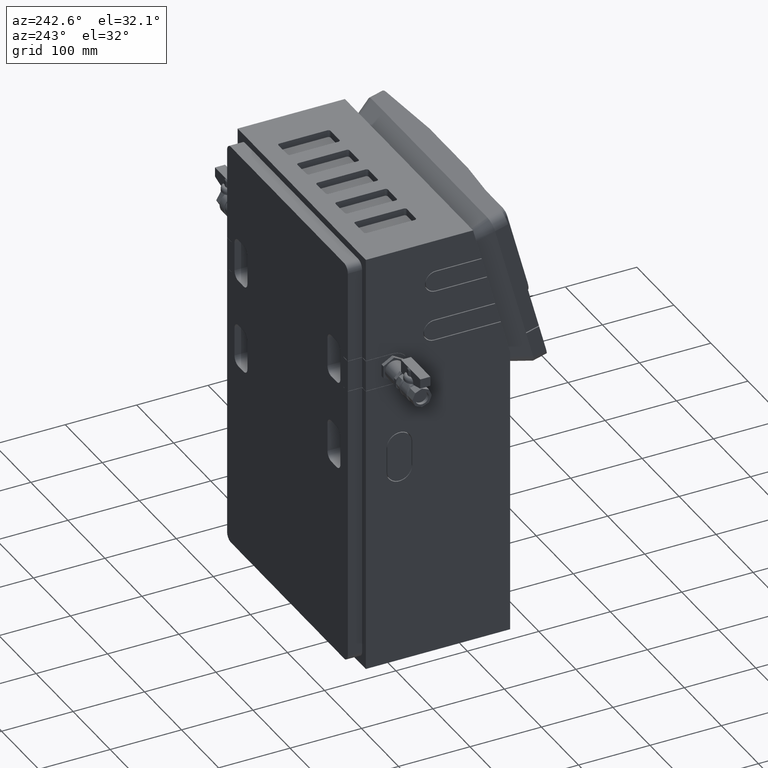
[diagram: clean part render]
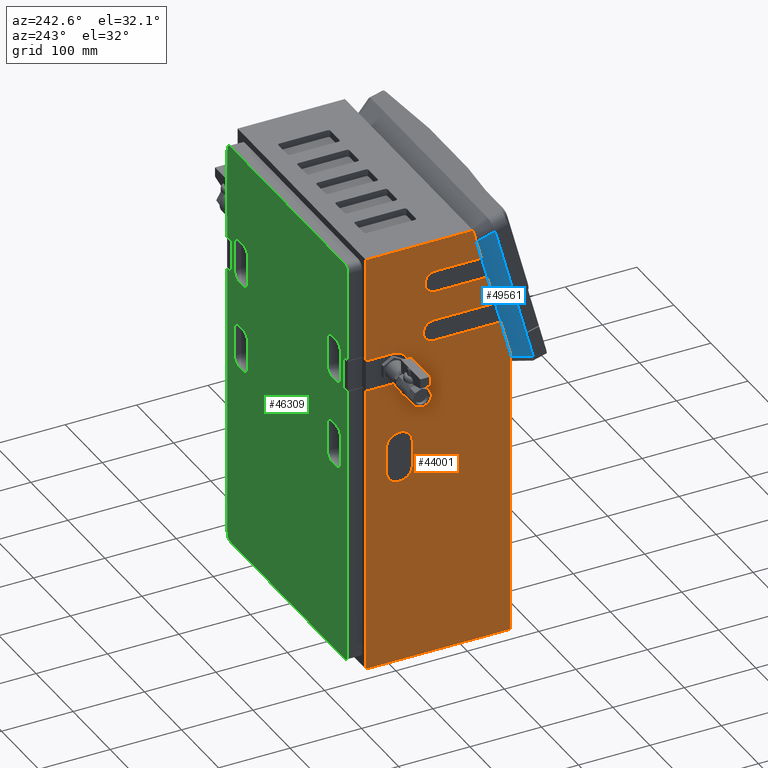
[diagram: same view with three faces highlighted in distinct colors, each labeled with its STEP entity id]
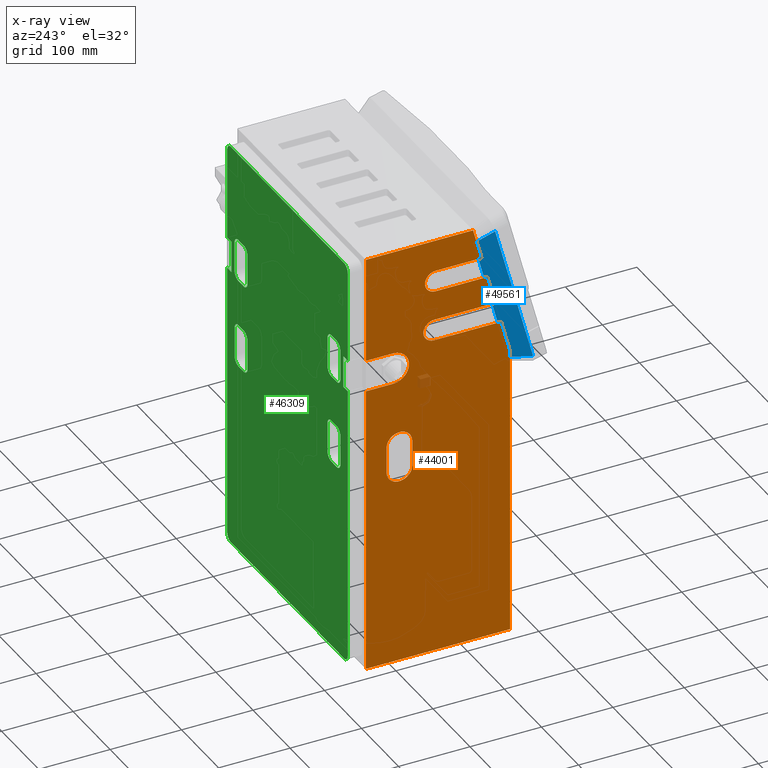
[diagram: x-ray of the same camera — body ghosted, the three highlighted faces saturated]
A machine part, auxiliary view with three faces highlighted in distinct colors.
The next image is the same camera in x-ray (body ghosted, the three faces saturated) — at least one of them is partly hidden behind the body in this view.
Their STEP definitions:

[orange] entity #44001 — the highlighted face is a freeform B-spline surface patch.
#43632=CARTESIAN_POINT('',(-172.99999995250027,-209.0311775424592,-135.4799999997461));
#43633=VERTEX_POINT('',#43632);
#43648=CARTESIAN_POINT('',(-172.99999995250027,-115.50000000026517,-135.4799999997461));
#43649=VERTEX_POINT('',#43648);
#43656=CARTESIAN_POINT('',(-173.0,-209.0311775424592,-135.47999999974604));
#43657=DIRECTION('',(0.0,1.0,0.0));
#43658=VECTOR('',#43657,93.53117754219403);
#43659=LINE('',#43656,#43658);
#43660=EDGE_CURVE('',#43633,#43649,#43659,.T.);
#43680=CARTESIAN_POINT('',(-172.99999995250027,-115.50000000026517,-105.4799999997461));
#43681=VERTEX_POINT('',#43680);
#43688=CARTESIAN_POINT('',(-173.0,-115.50000000026529,-120.4799999997461));
#43689=DIRECTION('',(1.0,0.0,0.0));
#43690=DIRECTION('',(0.0,-1.0,0.0));
#43691=AXIS2_PLACEMENT_3D('',#43688,#43689,#43690);
#43692=CIRCLE('',#43691,15.0);
#43693=EDGE_CURVE('',#43649,#43681,#43692,.T.);
#43727=CARTESIAN_POINT('',(-172.99999995250027,-200.99270176952552,-105.4799999997461));
#43728=VERTEX_POINT('',#43727);
#43735=CARTESIAN_POINT('',(-173.0,-115.50000000026517,-105.47999999974604));
#43736=DIRECTION('',(0.0,-1.0,0.0));
#43737=VECTOR('',#43736,85.49270176926035);
#43738=LINE('',#43735,#43737);
#43739=EDGE_CURVE('',#43681,#43728,#43738,.T.);
#43753=CARTESIAN_POINT('',(-172.99999995250027,-189.92907961404308,-64.189999999740962));
#43754=VERTEX_POINT('',#43753);
#43769=CARTESIAN_POINT('',(-172.99999995250027,-117.70970153820423,-64.189999999740962));
#43770=VERTEX_POINT('',#43769);
#43777=CARTESIAN_POINT('',(-173.0,-189.92907961404308,-64.189999999740962));
#43778=DIRECTION('',(0.0,1.0,0.0));
#43779=VECTOR('',#43778,72.219378075838847);
#43780=LINE('',#43777,#43779);
#43781=EDGE_CURVE('',#43754,#43770,#43780,.T.);
#43801=CARTESIAN_POINT('',(-172.99999995250027,-117.70970153820423,-34.189999999740962));
#43802=VERTEX_POINT('',#43801);
#43809=CARTESIAN_POINT('',(-173.0,-117.70970153820434,-49.189999999740962));
#43810=DIRECTION('',(1.0,0.0,0.0));
#43811=DIRECTION('',(0.0,-1.0,0.0));
#43812=AXIS2_PLACEMENT_3D('',#43809,#43810,#43811);
#43813=CIRCLE('',#43812,15.0);
#43814=EDGE_CURVE('',#43770,#43802,#43813,.T.);
#43848=CARTESIAN_POINT('',(-172.99999995250027,-181.8906038411094,-34.189999999740962));
#43849=VERTEX_POINT('',#43848);
#43856=CARTESIAN_POINT('',(-173.0,-117.70970153820423,-34.189999999740962));
#43857=DIRECTION('',(0.0,-1.0,0.0));
#43858=VECTOR('',#43857,64.180902302905167);
#43859=LINE('',#43856,#43858);
#43860=EDGE_CURVE('',#43802,#43849,#43859,.T.);
#43867=CARTESIAN_POINT('',(-173.0,-222.00000000000006,10.0));
#43868=CARTESIAN_POINT('',(-173.0,-222.00000000000006,-590.0));
#43869=CARTESIAN_POINT('',(-173.0,-20.0,10.0));
#43870=CARTESIAN_POINT('',(-173.0,-20.0,-590.0));
#43871=B_SPLINE_SURFACE_WITH_KNOTS('',1,1,((#43867,#43869),(#43868,#43870)),.UNSPECIFIED.,.F.,.F.,.U.,(2,2),(2,2),(0.0,600.0),(0.0,202.00000000000006),.UNSPECIFIED.);
#43872=ORIENTED_EDGE('',*,*,#43660,.T.);
#43873=ORIENTED_EDGE('',*,*,#43693,.T.);
#43874=ORIENTED_EDGE('',*,*,#43739,.T.);
#43875=CARTESIAN_POINT('',(-173.0,-200.99270176952552,-105.4799999997461));
#43876=DIRECTION('',(0.0,0.258819045102521,0.965925826289068));
#43877=VECTOR('',#43876,42.746553489137654);
#43878=LINE('',#43875,#43877);
#43879=EDGE_CURVE('',#43728,#43754,#43878,.T.);
#43880=ORIENTED_EDGE('',*,*,#43879,.T.);
#43881=ORIENTED_EDGE('',*,*,#43781,.T.);
#43882=ORIENTED_EDGE('',*,*,#43814,.T.);
#43883=ORIENTED_EDGE('',*,*,#43860,.T.);
#43884=CARTESIAN_POINT('',(-173.0,-170.04992902764747,10.0));
#43885=VERTEX_POINT('',#43884);
#43886=CARTESIAN_POINT('',(-173.0,-181.8906038411094,-34.189999999740962));
#43887=DIRECTION('',(0.0,0.258819045102521,0.965925826289068));
#43888=VECTOR('',#43887,45.748854412053426);
#43889=LINE('',#43886,#43888);
#43890=EDGE_CURVE('',#43849,#43885,#43889,.T.);
#43891=ORIENTED_EDGE('',*,*,#43890,.T.);
#43892=CARTESIAN_POINT('',(-173.0,-20.0,10.0));
#43893=VERTEX_POINT('',#43892);
#43894=CARTESIAN_POINT('',(-173.0,-170.04992902764747,10.0));
#43895=DIRECTION('',(0.0,1.0,0.0));
#43896=VECTOR('',#43895,150.04992902764747);
#43897=LINE('',#43894,#43896);
#43898=EDGE_CURVE('',#43885,#43893,#43897,.T.);
#43899=ORIENTED_EDGE('',*,*,#43898,.T.);
#43900=CARTESIAN_POINT('',(-172.99999995250027,-20.0,-138.22999997087527));
#43901=VERTEX_POINT('',#43900);
#43902=CARTESIAN_POINT('',(-173.0,-20.0,10.0));
#43903=DIRECTION('',(0.0,0.0,-1.0));
#43904=VECTOR('',#43903,148.22999997087527);
#43905=LINE('',#43902,#43904);
#43906=EDGE_CURVE('',#43893,#43901,#43905,.T.);
#43907=ORIENTED_EDGE('',*,*,#43906,.T.);
#43908=CARTESIAN_POINT('',(-172.99999995250027,-58.19697643615558,-138.22999997087527));
#43909=VERTEX_POINT('',#43908);
#43910=CARTESIAN_POINT('',(-173.0,-20.0,-138.22999997087527));
#43911=DIRECTION('',(0.0,-1.0,0.0));
#43912=VECTOR('',#43911,38.19697643615558);
#43913=LINE('',#43910,#43912);
#43914=EDGE_CURVE('',#43901,#43909,#43913,.T.);
#43915=ORIENTED_EDGE('',*,*,#43914,.T.);
#43916=CARTESIAN_POINT('',(-172.99999995250027,-58.19697643615558,-182.72999997087527));
#43917=VERTEX_POINT('',#43916);
#43918=CARTESIAN_POINT('',(-173.0,-58.19697643615558,-160.47999997087527));
#43919=DIRECTION('',(1.0,0.0,0.0));
#43920=DIRECTION('',(0.0,1.0,0.0));
#43921=AXIS2_PLACEMENT_3D('',#43918,#43919,#43920);
#43922=CIRCLE('',#43921,22.25);
#43923=EDGE_CURVE('',#43909,#43917,#43922,.T.);
#43924=ORIENTED_EDGE('',*,*,#43923,.T.);
#43925=CARTESIAN_POINT('',(-172.99999995250027,-20.0,-182.72999997087527));
#43926=VERTEX_POINT('',#43925);
#43927=CARTESIAN_POINT('',(-173.0,-58.19697643615558,-182.72999997087527));
#43928=DIRECTION('',(0.0,1.0,0.0));
#43929=VECTOR('',#43928,38.19697643615558);
#43930=LINE('',#43927,#43929);
#43931=EDGE_CURVE('',#43917,#43926,#43930,.T.);
#43932=ORIENTED_EDGE('',*,*,#43931,.T.);
#43933=CARTESIAN_POINT('',(-173.0,-20.0,-590.0));
#43934=VERTEX_POINT('',#43933);
#43935=CARTESIAN_POINT('',(-173.0,-20.0,-182.72999997087527));
#43936=DIRECTION('',(0.0,0.0,-1.0));
#43937=VECTOR('',#43936,407.27000002912473);
#43938=LINE('',#43935,#43937);
#43939=EDGE_CURVE('',#43926,#43934,#43938,.T.);
#43940=ORIENTED_EDGE('',*,*,#43939,.T.);
#43941=CARTESIAN_POINT('',(-173.00000000000045,-222.00000000000006,-590.0));
#43942=VERTEX_POINT('',#43941);
#43943=CARTESIAN_POINT('',(-173.0,-20.0,-590.0));
#43944=DIRECTION('',(0.0,-1.0,0.0));
#43945=VECTOR('',#43944,202.00000000000006);
#43946=LINE('',#43943,#43945);
#43947=EDGE_CURVE('',#43934,#43942,#43946,.T.);
#43948=ORIENTED_EDGE('',*,*,#43947,.T.);
#43949=CARTESIAN_POINT('',(-173.00000000000045,-222.00000000000006,-183.88030432562891));
#43950=VERTEX_POINT('',#43949);
#43951=CARTESIAN_POINT('',(-173.00000000000045,-222.00000000000006,-590.0));
#43952=DIRECTION('',(0.0,0.0,1.0));
#43953=VECTOR('',#43952,406.11969567437109);
#43954=LINE('',#43951,#43953);
#43955=EDGE_CURVE('',#43942,#43950,#43954,.T.);
#43956=ORIENTED_EDGE('',*,*,#43955,.T.);
#43957=CARTESIAN_POINT('',(-173.0,-222.00000000000006,-183.88030432562891));
#43958=DIRECTION('',(0.0,0.25881904510252,0.965925826289068));
#43959=VECTOR('',#43958,50.107682193185575);
#43960=LINE('',#43957,#43959);
#43961=EDGE_CURVE('',#43950,#43633,#43960,.T.);
#43962=ORIENTED_EDGE('',*,*,#43961,.T.);
#43963=EDGE_LOOP('',(#43872,#43873,#43874,#43880,#43881,#43882,#43883,#43891,#43899,#43907,#43915,#43924,#43932,#43940,#43948,#43956,#43962));
#43964=FACE_OUTER_BOUND('',#43963,.T.);
#43965=CARTESIAN_POINT('',(-172.99999995250027,-49.000000000093621,-274.1899999998555));
#43966=VERTEX_POINT('',#43965);
#43967=CARTESIAN_POINT('',(-172.99999995250027,-85.000000000093621,-274.1899999998555));
#43968=VERTEX_POINT('',#43967);
#43969=CARTESIAN_POINT('',(-173.0,-67.000000000093621,-274.1899999998555));
#43970=DIRECTION('',(1.0,0.0,0.0));
#43971=DIRECTION('',(0.0,1.0,0.0));
#43972=AXIS2_PLACEMENT_3D('',#43969,#43970,#43971);
#43973=CIRCLE('',#43972,18.0);
#43974=EDGE_CURVE('',#43966,#43968,#43973,.T.);
#43975=ORIENTED_EDGE('',*,*,#43974,.T.);
#43976=CARTESIAN_POINT('',(-172.99999995250027,-85.000000000093621,-310.1899999998555));
#43977=VERTEX_POINT('',#43976);
#43978=CARTESIAN_POINT('',(-173.0,-85.000000000093621,-274.1899999998555));
#43979=DIRECTION('',(0.0,0.0,-1.0));
#43980=VECTOR('',#43979,36.0);
#43981=LINE('',#43978,#43980);
#43982=EDGE_CURVE('',#43968,#43977,#43981,.T.);
#43983=ORIENTED_EDGE('',*,*,#43982,.T.);
#43984=CARTESIAN_POINT('',(-172.99999995250027,-49.000000000093621,-310.1899999998555));
#43985=VERTEX_POINT('',#43984);
#43986=CARTESIAN_POINT('',(-173.0,-67.000000000093621,-310.1899999998555));
#43987=DIRECTION('',(1.0,0.0,0.0));
#43988=DIRECTION('',(0.0,1.0,0.0));
#43989=AXIS2_PLACEMENT_3D('',#43986,#43987,#43988);
#43990=CIRCLE('',#43989,18.0);
#43991=EDGE_CURVE('',#43977,#43985,#43990,.T.);
#43992=ORIENTED_EDGE('',*,*,#43991,.T.);
#43993=CARTESIAN_POINT('',(-173.0,-49.000000000093621,-310.1899999998555));
#43994=DIRECTION('',(0.0,0.0,1.0));
#43995=VECTOR('',#43994,36.0);
#43996=LINE('',#43993,#43995);
#43997=EDGE_CURVE('',#43985,#43966,#43996,.T.);
#43998=ORIENTED_EDGE('',*,*,#43997,.T.);
#43999=EDGE_LOOP('',(#43975,#43983,#43992,#43998));
#44000=FACE_BOUND('',#43999,.T.);
#44001=ADVANCED_FACE('',(#43964,#44000),#43871,.F.);

[blue] entity #49561 — the highlighted planar face has unit normal (-0.9425, 0.3228, -0.0865).
#48515=CARTESIAN_POINT('',(-170.29999995249906,-202.36912142741917,-2.239136083154595));
#48516=VERTEX_POINT('',#48515);
#48524=CARTESIAN_POINT('',(-170.29999995249909,-255.42702567343596,-200.25393047241374));
#48525=VERTEX_POINT('',#48524);
#48526=CARTESIAN_POINT('',(-170.29999995249906,-202.36912142741917,-2.239136083154595));
#48527=DIRECTION('',(-1.386425E-016,-0.258819045102519,-0.965925826289069));
#48528=VECTOR('',#48527,205.00000000000017);
#48529=LINE('',#48526,#48528);
#48530=EDGE_CURVE('',#48516,#48525,#48529,.T.);
#49309=CARTESIAN_POINT('',(-160.29999995249926,-225.85854596616161,-198.85929510770336));
#49310=VERTEX_POINT('',#49309);
#49318=CARTESIAN_POINT('',(-160.29999995249906,-177.45938453199039,-18.23116559164734));
#49319=VERTEX_POINT('',#49318);
#49320=CARTESIAN_POINT('',(-160.29999995249906,-177.45938453199039,-18.23116559164734));
#49321=DIRECTION('',(-3.039755E-016,-0.258819045102519,-0.965925826289069));
#49322=VECTOR('',#49321,187.0000000000002);
#49323=LINE('',#49320,#49322);
#49324=EDGE_CURVE('',#49319,#49310,#49323,.T.);
#49534=CARTESIAN_POINT('',(-160.29999995249906,-177.45938453199039,-18.23116559164734));
#49535=DIRECTION('',(-0.320052851490617,-0.797243232326311,0.511829464531518));
#49536=VECTOR('',#49535,31.244839573919869);
#49537=LINE('',#49534,#49536);
#49538=EDGE_CURVE('',#49319,#48516,#49537,.T.);
#49545=CARTESIAN_POINT('',(-160.29999995249906,-177.45938453199039,-18.23116559164734));
#49546=DIRECTION('',(-0.942495681689853,0.322830113514238,-0.086502068208587));
#49547=DIRECTION('',(0.334218326840374,0.91038092011015,-0.243935832348216));
#49548=AXIS2_PLACEMENT_3D('',#49545,#49546,#49547);
#49549=PLANE('',#49548);
#49550=ORIENTED_EDGE('',*,*,#49324,.T.);
#49551=CARTESIAN_POINT('',(-170.29999995249909,-255.42702567343596,-200.25393047241374));
#49552=DIRECTION('',(0.320052851490612,0.946347624455565,0.044635702526527));
#49553=VECTOR('',#49552,31.244839573919922);
#49554=LINE('',#49551,#49553);
#49555=EDGE_CURVE('',#48525,#49310,#49554,.T.);
#49556=ORIENTED_EDGE('',*,*,#49555,.F.);
#49557=ORIENTED_EDGE('',*,*,#48530,.F.);
#49558=ORIENTED_EDGE('',*,*,#49538,.F.);
#49559=EDGE_LOOP('',(#49550,#49556,#49557,#49558));
#49560=FACE_OUTER_BOUND('',#49559,.T.);
#49561=ADVANCED_FACE('',(#49560),#49549,.T.);

[green] entity #46309 — the highlighted face is a freeform B-spline surface patch.
#45614=CARTESIAN_POINT('',(150.99999995250027,0.0,-138.22999997087527));
#45615=VERTEX_POINT('',#45614);
#45616=CARTESIAN_POINT('',(150.99999995250027,0.0,-182.72999997087527));
#45617=VERTEX_POINT('',#45616);
#45618=CARTESIAN_POINT('',(150.99999995250027,0.0,-138.22999997087527));
#45619=DIRECTION('',(0.0,0.0,-1.0));
#45620=VECTOR('',#45619,44.5);
#45621=LINE('',#45618,#45620);
#45622=EDGE_CURVE('',#45615,#45617,#45621,.T.);
#45655=CARTESIAN_POINT('',(163.0,0.0,-182.72999997087527));
#45656=VERTEX_POINT('',#45655);
#45657=CARTESIAN_POINT('',(150.99999995250027,0.0,-182.72999997087527));
#45658=DIRECTION('',(1.0,0.0,0.0));
#45659=VECTOR('',#45658,12.000000047499725);
#45660=LINE('',#45657,#45659);
#45661=EDGE_CURVE('',#45617,#45656,#45660,.T.);
#45748=CARTESIAN_POINT('',(163.0,0.0,-138.22999997087527));
#45749=VERTEX_POINT('',#45748);
#45750=CARTESIAN_POINT('',(163.0,0.0,-138.22999997087527));
#45751=DIRECTION('',(-1.0,0.0,0.0));
#45752=VECTOR('',#45751,12.000000047499725);
#45753=LINE('',#45750,#45752);
#45754=EDGE_CURVE('',#45749,#45615,#45753,.T.);
#45788=CARTESIAN_POINT('',(-150.99999995250027,0.0,-138.22999997087527));
#45789=VERTEX_POINT('',#45788);
#45790=CARTESIAN_POINT('',(-163.0,0.0,-138.22999997087527));
#45791=VERTEX_POINT('',#45790);
#45792=CARTESIAN_POINT('',(-150.99999995250027,0.0,-138.22999997087527));
#45793=DIRECTION('',(-1.0,0.0,0.0));
#45794=VECTOR('',#45793,12.000000047499725);
#45795=LINE('',#45792,#45794);
#45796=EDGE_CURVE('',#45789,#45791,#45795,.T.);
#45860=CARTESIAN_POINT('',(-150.99999995250027,0.0,-182.72999997087527));
#45861=VERTEX_POINT('',#45860);
#45862=CARTESIAN_POINT('',(-150.99999995250027,0.0,-182.72999997087527));
#45863=DIRECTION('',(0.0,0.0,1.0));
#45864=VECTOR('',#45863,44.5);
#45865=LINE('',#45862,#45864);
#45866=EDGE_CURVE('',#45861,#45789,#45865,.T.);
#45884=CARTESIAN_POINT('',(-163.0,0.0,-182.72999997087527));
#45885=VERTEX_POINT('',#45884);
#45886=CARTESIAN_POINT('',(-163.0,0.0,-182.72999997087527));
#45887=DIRECTION('',(1.0,0.0,0.0));
#45888=VECTOR('',#45887,12.000000047499725);
#45889=LINE('',#45886,#45888);
#45890=EDGE_CURVE('',#45885,#45861,#45889,.T.);
#45926=CARTESIAN_POINT('',(163.0,0.0,-570.0));
#45927=VERTEX_POINT('',#45926);
#45934=CARTESIAN_POINT('',(163.0,0.0,-182.72999997087527));
#45935=DIRECTION('',(0.0,0.0,-1.0));
#45936=VECTOR('',#45935,387.27000002912473);
#45937=LINE('',#45934,#45936);
#45938=EDGE_CURVE('',#45656,#45927,#45937,.T.);
#45943=CARTESIAN_POINT('',(163.0,0.0,-580.0));
#45944=CARTESIAN_POINT('',(163.0,0.0,0.0));
#45945=CARTESIAN_POINT('',(-163.0,0.0,-580.0));
#45946=CARTESIAN_POINT('',(-163.0,0.0,0.0));
#45947=B_SPLINE_SURFACE_WITH_KNOTS('',1,1,((#45943,#45945),(#45944,#45946)),.UNSPECIFIED.,.F.,.F.,.U.,(2,2),(2,2),(0.0,580.0),(0.0,326.0),.UNSPECIFIED.);
#45948=ORIENTED_EDGE('',*,*,#45754,.T.);
#45949=ORIENTED_EDGE('',*,*,#45622,.T.);
#45950=ORIENTED_EDGE('',*,*,#45661,.T.);
#45951=ORIENTED_EDGE('',*,*,#45938,.T.);
#45952=CARTESIAN_POINT('',(153.0,0.0,-580.0));
#45953=VERTEX_POINT('',#45952);
#45954=CARTESIAN_POINT('',(153.0,0.0,-570.0));
#45955=DIRECTION('',(0.0,-1.0,0.0));
#45956=DIRECTION('',(0.707106781186547,0.0,-0.707106781186547));
#45957=AXIS2_PLACEMENT_3D('',#45954,#45955,#45956);
#45958=CIRCLE('',#45957,9.999999999999998);
#45959=EDGE_CURVE('',#45953,#45927,#45958,.T.);
#45960=ORIENTED_EDGE('',*,*,#45959,.F.);
#45961=CARTESIAN_POINT('',(-153.0,0.0,-580.0));
#45962=VERTEX_POINT('',#45961);
#45963=CARTESIAN_POINT('',(153.0,0.0,-580.0));
#45964=DIRECTION('',(-1.0,0.0,0.0));
#45965=VECTOR('',#45964,306.0);
#45966=LINE('',#45963,#45965);
#45967=EDGE_CURVE('',#45953,#45962,#45966,.T.);
#45968=ORIENTED_EDGE('',*,*,#45967,.T.);
#45969=CARTESIAN_POINT('',(-163.0,0.0,-570.0));
#45970=VERTEX_POINT('',#45969);
#45971=CARTESIAN_POINT('',(-153.0,0.0,-570.0));
#45972=DIRECTION('',(0.0,-1.0,0.0));
#45973=DIRECTION('',(-0.707106781186547,0.0,-0.707106781186547));
#45974=AXIS2_PLACEMENT_3D('',#45971,#45972,#45973);
#45975=CIRCLE('',#45974,9.999999999999998);
#45976=EDGE_CURVE('',#45970,#45962,#45975,.T.);
#45977=ORIENTED_EDGE('',*,*,#45976,.F.);
#45978=CARTESIAN_POINT('',(-163.0,0.0,-182.72999997087527));
#45979=DIRECTION('',(0.0,0.0,-1.0));
#45980=VECTOR('',#45979,387.27000002912473);
#45981=LINE('',#45978,#45980);
#45982=EDGE_CURVE('',#45885,#45970,#45981,.T.);
#45983=ORIENTED_EDGE('',*,*,#45982,.F.);
#45984=ORIENTED_EDGE('',*,*,#45890,.T.);
#45985=ORIENTED_EDGE('',*,*,#45866,.T.);
#45986=ORIENTED_EDGE('',*,*,#45796,.T.);
#45987=CARTESIAN_POINT('',(-163.0,0.0,-10.0));
#45988=VERTEX_POINT('',#45987);
#45989=CARTESIAN_POINT('',(-163.0,0.0,-10.0));
#45990=DIRECTION('',(0.0,0.0,-1.0));
#45991=VECTOR('',#45990,128.22999997087527);
#45992=LINE('',#45989,#45991);
#45993=EDGE_CURVE('',#45988,#45791,#45992,.T.);
#45994=ORIENTED_EDGE('',*,*,#45993,.F.);
#45995=CARTESIAN_POINT('',(-153.0,0.0,0.0));
#45996=VERTEX_POINT('',#45995);
#45997=CARTESIAN_POINT('',(-153.0,0.0,-10.0));
#45998=DIRECTION('',(0.0,-1.0,0.0));
#45999=DIRECTION('',(-0.707106781186547,0.0,0.707106781186547));
#46000=AXIS2_PLACEMENT_3D('',#45997,#45998,#45999);
#46001=CIRCLE('',#46000,9.999999999999998);
#46002=EDGE_CURVE('',#45996,#45988,#46001,.T.);
#46003=ORIENTED_EDGE('',*,*,#46002,.F.);
#46004=CARTESIAN_POINT('',(153.0,0.0,0.0));
#46005=VERTEX_POINT('',#46004);
#46006=CARTESIAN_POINT('',(-153.0,0.0,0.0));
#46007=DIRECTION('',(1.0,0.0,0.0));
#46008=VECTOR('',#46007,306.0);
#46009=LINE('',#46006,#46008);
#46010=EDGE_CURVE('',#45996,#46005,#46009,.T.);
#46011=ORIENTED_EDGE('',*,*,#46010,.T.);
#46012=CARTESIAN_POINT('',(163.0,0.0,-10.0));
#46013=VERTEX_POINT('',#46012);
#46014=CARTESIAN_POINT('',(153.0,0.0,-10.0));
#46015=DIRECTION('',(0.0,-1.0,0.0));
#46016=DIRECTION('',(0.707106781186547,0.0,0.707106781186547));
#46017=AXIS2_PLACEMENT_3D('',#46014,#46015,#46016);
#46018=CIRCLE('',#46017,9.999999999999998);
#46019=EDGE_CURVE('',#46013,#46005,#46018,.T.);
#46020=ORIENTED_EDGE('',*,*,#46019,.F.);
#46021=CARTESIAN_POINT('',(163.0,0.0,-10.0));
#46022=DIRECTION('',(0.0,0.0,-1.0));
#46023=VECTOR('',#46022,128.22999997087527);
#46024=LINE('',#46021,#46023);
#46025=EDGE_CURVE('',#46013,#45749,#46024,.T.);
#46026=ORIENTED_EDGE('',*,*,#46025,.T.);
#46027=EDGE_LOOP('',(#45948,#45949,#45950,#45951,#45960,#45968,#45977,#45983,#45984,#45985,#45986,#45994,#46003,#46011,#46020,#46026));
#46028=FACE_OUTER_BOUND('',#46027,.T.);
#46029=CARTESIAN_POINT('',(-117.99999995250027,-2.761453E-010,-185.34000000000674));
#46030=VERTEX_POINT('',#46029);
#46031=CARTESIAN_POINT('',(-107.99999995250027,-2.761453E-010,-175.34000000000674));
#46032=VERTEX_POINT('',#46031);
#46033=CARTESIAN_POINT('',(-117.99999995250027,0.0,-175.34000000000674));
#46034=DIRECTION('',(0.0,-1.0,0.0));
#46035=DIRECTION('',(0.707106781186547,0.0,-0.707106781186547));
#46036=AXIS2_PLACEMENT_3D('',#46033,#46034,#46035);
#46037=CIRCLE('',#46036,9.999999999999998);
#46038=EDGE_CURVE('',#46030,#46032,#46037,.T.);
#46039=ORIENTED_EDGE('',*,*,#46038,.T.);
#46040=CARTESIAN_POINT('',(-107.99999995250027,-2.761453E-010,-135.34000000000674));
#46041=VERTEX_POINT('',#46040);
#46042=CARTESIAN_POINT('',(-107.99999995250027,0.0,-175.34000000000674));
#46043=DIRECTION('',(0.0,0.0,1.0));
#46044=VECTOR('',#46043,40.0);
#46045=LINE('',#46042,#46044);
#46046=EDGE_CURVE('',#46032,#46041,#46045,.T.);
#46047=ORIENTED_EDGE('',*,*,#46046,.T.);
#46048=CARTESIAN_POINT('',(-117.99999995250027,-2.761453E-010,-125.34000000000674));
#46049=VERTEX_POINT('',#46048);
#46050=CARTESIAN_POINT('',(-117.99999995250027,0.0,-135.34000000000674));
#46051=DIRECTION('',(0.0,-1.0,0.0));
#46052=DIRECTION('',(0.707106781186547,0.0,0.707106781186547));
#46053=AXIS2_PLACEMENT_3D('',#46050,#46051,#46052);
#46054=CIRCLE('',#46053,9.999999999999998);
#46055=EDGE_CURVE('',#46041,#46049,#46054,.T.);
#46056=ORIENTED_EDGE('',*,*,#46055,.T.);
#46057=CARTESIAN_POINT('',(-132.99999995250027,-2.761453E-010,-125.34000000000674));
#46058=VERTEX_POINT('',#46057);
#46059=CARTESIAN_POINT('',(-117.99999995250027,0.0,-125.34000000000674));
#46060=DIRECTION('',(-1.0,0.0,0.0));
#46061=VECTOR('',#46060,15.0);
#46062=LINE('',#46059,#46061);
#46063=EDGE_CURVE('',#46049,#46058,#46062,.T.);
#46064=ORIENTED_EDGE('',*,*,#46063,.T.);
#46065=CARTESIAN_POINT('',(-142.99999995250027,-2.761453E-010,-135.34000000000674));
#46066=VERTEX_POINT('',#46065);
#46067=CARTESIAN_POINT('',(-132.99999995250027,0.0,-135.34000000000674));
#46068=DIRECTION('',(0.0,-1.0,0.0));
#46069=DIRECTION('',(-0.707106781186547,0.0,0.707106781186547));
#46070=AXIS2_PLACEMENT_3D('',#46067,#46068,#46069);
#46071=CIRCLE('',#46070,9.999999999999998);
#46072=EDGE_CURVE('',#46058,#46066,#46071,.T.);
#46073=ORIENTED_EDGE('',*,*,#46072,.T.);
#46074=CARTESIAN_POINT('',(-142.99999995250027,-2.761453E-010,-175.34000000000674));
#46075=VERTEX_POINT('',#46074);
#46076=CARTESIAN_POINT('',(-142.99999995250027,0.0,-135.34000000000674));
#46077=DIRECTION('',(0.0,0.0,-1.0));
#46078=VECTOR('',#46077,40.0);
#46079=LINE('',#46076,#46078);
#46080=EDGE_CURVE('',#46066,#46075,#46079,.T.);
#46081=ORIENTED_EDGE('',*,*,#46080,.T.);
#46082=CARTESIAN_POINT('',(-132.99999995250027,-2.761453E-010,-185.34000000000674));
#46083=VERTEX_POINT('',#46082);
#46084=CARTESIAN_POINT('',(-132.99999995250027,0.0,-175.34000000000674));
#46085=DIRECTION('',(0.0,-1.0,0.0));
#46086=DIRECTION('',(-0.707106781186547,0.0,-0.707106781186547));
#46087=AXIS2_PLACEMENT_3D('',#46084,#46085,#46086);
#46088=CIRCLE('',#46087,9.999999999999998);
#46089=EDGE_CURVE('',#46075,#46083,#46088,.T.);
#46090=ORIENTED_EDGE('',*,*,#46089,.T.);
#46091=CARTESIAN_POINT('',(-132.99999995250027,0.0,-185.34000000000674));
#46092=DIRECTION('',(1.0,0.0,0.0));
#46093=VECTOR('',#46092,15.0);
#46094=LINE('',#46091,#46093);
#46095=EDGE_CURVE('',#46083,#46030,#46094,.T.);
#46096=ORIENTED_EDGE('',*,*,#46095,.T.);
#46097=EDGE_LOOP('',(#46039,#46047,#46056,#46064,#46073,#46081,#46090,#46096));
#46098=FACE_BOUND('',#46097,.T.);
#46099=CARTESIAN_POINT('',(133.00000004749973,-2.761453E-010,-185.34000000000674));
#46100=VERTEX_POINT('',#46099);
#46101=CARTESIAN_POINT('',(143.00000004749973,-2.761453E-010,-175.34000000000674));
#46102=VERTEX_POINT('',#46101);
#46103=CARTESIAN_POINT('',(133.00000004749973,0.0,-175.34000000000674));
#46104=DIRECTION('',(0.0,-1.0,0.0));
#46105=DIRECTION('',(0.707106781186547,0.0,-0.707106781186547));
#46106=AXIS2_PLACEMENT_3D('',#46103,#46104,#46105);
#46107=CIRCLE('',#46106,9.999999999999998);
#46108=EDGE_CURVE('',#46100,#46102,#46107,.T.);
#46109=ORIENTED_EDGE('',*,*,#46108,.T.);
#46110=CARTESIAN_POINT('',(143.00000004749973,-2.761453E-010,-135.34000000000674));
#46111=VERTEX_POINT('',#46110);
#46112=CARTESIAN_POINT('',(143.00000004749973,0.0,-175.34000000000674));
#46113=DIRECTION('',(0.0,0.0,1.0));
#46114=VECTOR('',#46113,40.0);
#46115=LINE('',#46112,#46114);
#46116=EDGE_CURVE('',#46102,#46111,#46115,.T.);
#46117=ORIENTED_EDGE('',*,*,#46116,.T.);
#46118=CARTESIAN_POINT('',(133.00000004749973,-2.761453E-010,-125.34000000000674));
#46119=VERTEX_POINT('',#46118);
#46120=CARTESIAN_POINT('',(133.00000004749973,0.0,-135.34000000000674));
#46121=DIRECTION('',(0.0,-1.0,0.0));
#46122=DIRECTION('',(0.707106781186547,0.0,0.707106781186547));
#46123=AXIS2_PLACEMENT_3D('',#46120,#46121,#46122);
#46124=CIRCLE('',#46123,9.999999999999998);
#46125=EDGE_CURVE('',#46111,#46119,#46124,.T.);
#46126=ORIENTED_EDGE('',*,*,#46125,.T.);
#46127=CARTESIAN_POINT('',(118.00000004749973,-2.761453E-010,-125.34000000000674));
#46128=VERTEX_POINT('',#46127);
#46129=CARTESIAN_POINT('',(133.00000004749973,0.0,-125.34000000000674));
#46130=DIRECTION('',(-1.0,0.0,0.0));
#46131=VECTOR('',#46130,15.0);
#46132=LINE('',#46129,#46131);
#46133=EDGE_CURVE('',#46119,#46128,#46132,.T.);
#46134=ORIENTED_EDGE('',*,*,#46133,.T.);
#46135=CARTESIAN_POINT('',(108.00000004749973,-2.761453E-010,-135.34000000000674));
#46136=VERTEX_POINT('',#46135);
#46137=CARTESIAN_POINT('',(118.00000004749973,0.0,-135.34000000000674));
#46138=DIRECTION('',(0.0,-1.0,0.0));
#46139=DIRECTION('',(-0.707106781186547,0.0,0.707106781186547));
#46140=AXIS2_PLACEMENT_3D('',#46137,#46138,#46139);
#46141=CIRCLE('',#46140,9.999999999999998);
#46142=EDGE_CURVE('',#46128,#46136,#46141,.T.);
#46143=ORIENTED_EDGE('',*,*,#46142,.T.);
#46144=CARTESIAN_POINT('',(108.00000004749973,-2.761453E-010,-175.34000000000674));
#46145=VERTEX_POINT('',#46144);
#46146=CARTESIAN_POINT('',(108.00000004749973,0.0,-135.34000000000674));
#46147=DIRECTION('',(0.0,0.0,-1.0));
#46148=VECTOR('',#46147,40.0);
#46149=LINE('',#46146,#46148);
#46150=EDGE_CURVE('',#46136,#46145,#46149,.T.);
#46151=ORIENTED_EDGE('',*,*,#46150,.T.);
#46152=CARTESIAN_POINT('',(118.00000004749973,-2.761453E-010,-185.34000000000674));
#46153=VERTEX_POINT('',#46152);
#46154=CARTESIAN_POINT('',(118.00000004749973,0.0,-175.34000000000674));
#46155=DIRECTION('',(0.0,-1.0,0.0));
#46156=DIRECTION('',(-0.707106781186547,0.0,-0.707106781186547));
#46157=AXIS2_PLACEMENT_3D('',#46154,#46155,#46156);
#46158=CIRCLE('',#46157,9.999999999999998);
#46159=EDGE_CURVE('',#46145,#46153,#46158,.T.);
#46160=ORIENTED_EDGE('',*,*,#46159,.T.);
#46161=CARTESIAN_POINT('',(118.00000004749973,0.0,-185.34000000000674));
#46162=DIRECTION('',(1.0,0.0,0.0));
#46163=VECTOR('',#46162,15.0);
#46164=LINE('',#46161,#46163);
#46165=EDGE_CURVE('',#46153,#46100,#46164,.T.);
#46166=ORIENTED_EDGE('',*,*,#46165,.T.);
#46167=EDGE_LOOP('',(#46109,#46117,#46126,#46134,#46143,#46151,#46160,#46166));
#46168=FACE_BOUND('',#46167,.T.);
#46169=CARTESIAN_POINT('',(133.00000004749973,-5.583729E-010,-310.34000000000674));
#46170=VERTEX_POINT('',#46169);
#46171=CARTESIAN_POINT('',(143.00000004749973,-5.583729E-010,-300.34000000000674));
#46172=VERTEX_POINT('',#46171);
#46173=CARTESIAN_POINT('',(133.00000004749973,0.0,-300.34000000000674));
#46174=DIRECTION('',(0.0,-1.0,0.0));
#46175=DIRECTION('',(0.707106781186547,0.0,-0.707106781186547));
#46176=AXIS2_PLACEMENT_3D('',#46173,#46174,#46175);
#46177=CIRCLE('',#46176,9.999999999999998);
#46178=EDGE_CURVE('',#46170,#46172,#46177,.T.);
#46179=ORIENTED_EDGE('',*,*,#46178,.T.);
#46180=CARTESIAN_POINT('',(143.00000004749973,-5.583729E-010,-260.34000000000674));
#46181=VERTEX_POINT('',#46180);
#46182=CARTESIAN_POINT('',(143.00000004749973,0.0,-300.34000000000674));
#46183=DIRECTION('',(0.0,0.0,1.0));
#46184=VECTOR('',#46183,40.0);
#46185=LINE('',#46182,#46184);
#46186=EDGE_CURVE('',#46172,#46181,#46185,.T.);
#46187=ORIENTED_EDGE('',*,*,#46186,.T.);
#46188=CARTESIAN_POINT('',(133.00000004749973,-5.583729E-010,-250.34000000000674));
#46189=VERTEX_POINT('',#46188);
#46190=CARTESIAN_POINT('',(133.00000004749973,0.0,-260.34000000000674));
#46191=DIRECTION('',(0.0,-1.0,0.0));
#46192=DIRECTION('',(0.707106781186547,0.0,0.707106781186547));
#46193=AXIS2_PLACEMENT_3D('',#46190,#46191,#46192);
#46194=CIRCLE('',#46193,9.999999999999998);
#46195=EDGE_CURVE('',#46181,#46189,#46194,.T.);
#46196=ORIENTED_EDGE('',*,*,#46195,.T.);
#46197=CARTESIAN_POINT('',(118.00000004749973,-5.583729E-010,-250.34000000000674));
#46198=VERTEX_POINT('',#46197);
#46199=CARTESIAN_POINT('',(133.00000004749973,0.0,-250.34000000000674));
#46200=DIRECTION('',(-1.0,0.0,0.0));
#46201=VECTOR('',#46200,15.0);
#46202=LINE('',#46199,#46201);
#46203=EDGE_CURVE('',#46189,#46198,#46202,.T.);
#46204=ORIENTED_EDGE('',*,*,#46203,.T.);
#46205=CARTESIAN_POINT('',(108.00000004749973,-5.583729E-010,-260.34000000000674));
#46206=VERTEX_POINT('',#46205);
#46207=CARTESIAN_POINT('',(118.00000004749973,0.0,-260.34000000000674));
#46208=DIRECTION('',(0.0,-1.0,0.0));
#46209=DIRECTION('',(-0.707106781186547,0.0,0.707106781186547));
#46210=AXIS2_PLACEMENT_3D('',#46207,#46208,#46209);
#46211=CIRCLE('',#46210,9.999999999999998);
#46212=EDGE_CURVE('',#46198,#46206,#46211,.T.);
#46213=ORIENTED_EDGE('',*,*,#46212,.T.);
#46214=CARTESIAN_POINT('',(108.00000004749973,-5.583729E-010,-300.34000000000674));
#46215=VERTEX_POINT('',#46214);
#46216=CARTESIAN_POINT('',(108.00000004749973,0.0,-260.34000000000674));
#46217=DIRECTION('',(0.0,0.0,-1.0));
#46218=VECTOR('',#46217,40.0);
#46219=LINE('',#46216,#46218);
#46220=EDGE_CURVE('',#46206,#46215,#46219,.T.);
#46221=ORIENTED_EDGE('',*,*,#46220,.T.);
#46222=CARTESIAN_POINT('',(118.00000004749973,-5.583729E-010,-310.34000000000674));
#46223=VERTEX_POINT('',#46222);
#46224=CARTESIAN_POINT('',(118.00000004749973,0.0,-300.34000000000674));
#46225=DIRECTION('',(0.0,-1.0,0.0));
#46226=DIRECTION('',(-0.707106781186547,0.0,-0.707106781186547));
#46227=AXIS2_PLACEMENT_3D('',#46224,#46225,#46226);
#46228=CIRCLE('',#46227,9.999999999999998);
#46229=EDGE_CURVE('',#46215,#46223,#46228,.T.);
#46230=ORIENTED_EDGE('',*,*,#46229,.T.);
#46231=CARTESIAN_POINT('',(118.00000004749973,0.0,-310.34000000000674));
#46232=DIRECTION('',(1.0,0.0,0.0));
#46233=VECTOR('',#46232,15.0);
#46234=LINE('',#46231,#46233);
#46235=EDGE_CURVE('',#46223,#46170,#46234,.T.);
#46236=ORIENTED_EDGE('',*,*,#46235,.T.);
#46237=EDGE_LOOP('',(#46179,#46187,#46196,#46204,#46213,#46221,#46230,#46236));
#46238=FACE_BOUND('',#46237,.T.);
#46239=CARTESIAN_POINT('',(-117.99999995250027,-5.583729E-010,-310.34000000000674));
#46240=VERTEX_POINT('',#46239);
#46241=CARTESIAN_POINT('',(-107.99999995250027,-5.583729E-010,-300.34000000000674));
#46242=VERTEX_POINT('',#46241);
#46243=CARTESIAN_POINT('',(-117.99999995250027,0.0,-300.34000000000674));
#46244=DIRECTION('',(0.0,-1.0,0.0));
#46245=DIRECTION('',(0.707106781186547,0.0,-0.707106781186547));
#46246=AXIS2_PLACEMENT_3D('',#46243,#46244,#46245);
#46247=CIRCLE('',#46246,9.999999999999998);
#46248=EDGE_CURVE('',#46240,#46242,#46247,.T.);
#46249=ORIENTED_EDGE('',*,*,#46248,.T.);
#46250=CARTESIAN_POINT('',(-107.99999995250027,-5.583729E-010,-260.34000000000674));
#46251=VERTEX_POINT('',#46250);
#46252=CARTESIAN_POINT('',(-107.99999995250027,0.0,-300.34000000000674));
#46253=DIRECTION('',(0.0,0.0,1.0));
#46254=VECTOR('',#46253,40.0);
#46255=LINE('',#46252,#46254);
#46256=EDGE_CURVE('',#46242,#46251,#46255,.T.);
#46257=ORIENTED_EDGE('',*,*,#46256,.T.);
#46258=CARTESIAN_POINT('',(-117.99999995250027,-5.583729E-010,-250.34000000000674));
#46259=VERTEX_POINT('',#46258);
#46260=CARTESIAN_POINT('',(-117.99999995250027,0.0,-260.34000000000674));
#46261=DIRECTION('',(0.0,-1.0,0.0));
#46262=DIRECTION('',(0.707106781186547,0.0,0.707106781186547));
#46263=AXIS2_PLACEMENT_3D('',#46260,#46261,#46262);
#46264=CIRCLE('',#46263,9.999999999999998);
#46265=EDGE_CURVE('',#46251,#46259,#46264,.T.);
#46266=ORIENTED_EDGE('',*,*,#46265,.T.);
#46267=CARTESIAN_POINT('',(-132.99999995250027,-5.583729E-010,-250.34000000000674));
#46268=VERTEX_POINT('',#46267);
#46269=CARTESIAN_POINT('',(-117.99999995250027,0.0,-250.34000000000674));
#46270=DIRECTION('',(-1.0,0.0,0.0));
#46271=VECTOR('',#46270,15.0);
#46272=LINE('',#46269,#46271);
#46273=EDGE_CURVE('',#46259,#46268,#46272,.T.);
#46274=ORIENTED_EDGE('',*,*,#46273,.T.);
#46275=CARTESIAN_POINT('',(-142.99999995250027,-5.583729E-010,-260.34000000000674));
#46276=VERTEX_POINT('',#46275);
#46277=CARTESIAN_POINT('',(-132.99999995250027,0.0,-260.34000000000674));
#46278=DIRECTION('',(0.0,-1.0,0.0));
#46279=DIRECTION('',(-0.707106781186547,0.0,0.707106781186547));
#46280=AXIS2_PLACEMENT_3D('',#46277,#46278,#46279);
#46281=CIRCLE('',#46280,9.999999999999998);
#46282=EDGE_CURVE('',#46268,#46276,#46281,.T.);
#46283=ORIENTED_EDGE('',*,*,#46282,.T.);
#46284=CARTESIAN_POINT('',(-142.99999995250027,-5.583729E-010,-300.34000000000674));
#46285=VERTEX_POINT('',#46284);
#46286=CARTESIAN_POINT('',(-142.99999995250027,0.0,-260.34000000000674));
#46287=DIRECTION('',(0.0,0.0,-1.0));
#46288=VECTOR('',#46287,40.0);
#46289=LINE('',#46286,#46288);
#46290=EDGE_CURVE('',#46276,#46285,#46289,.T.);
#46291=ORIENTED_EDGE('',*,*,#46290,.T.);
#46292=CARTESIAN_POINT('',(-132.99999995250027,-5.583729E-010,-310.34000000000674));
#46293=VERTEX_POINT('',#46292);
#46294=CARTESIAN_POINT('',(-132.99999995250027,0.0,-300.34000000000674));
#46295=DIRECTION('',(0.0,-1.0,0.0));
#46296=DIRECTION('',(-0.707106781186547,0.0,-0.707106781186547));
#46297=AXIS2_PLACEMENT_3D('',#46294,#46295,#46296);
#46298=CIRCLE('',#46297,9.999999999999998);
#46299=EDGE_CURVE('',#46285,#46293,#46298,.T.);
#46300=ORIENTED_EDGE('',*,*,#46299,.T.);
#46301=CARTESIAN_POINT('',(-132.99999995250027,0.0,-310.34000000000674));
#46302=DIRECTION('',(1.0,0.0,0.0));
#46303=VECTOR('',#46302,15.0);
#46304=LINE('',#46301,#46303);
#46305=EDGE_CURVE('',#46293,#46240,#46304,.T.);
#46306=ORIENTED_EDGE('',*,*,#46305,.T.);
#46307=EDGE_LOOP('',(#46249,#46257,#46266,#46274,#46283,#46291,#46300,#46306));
#46308=FACE_BOUND('',#46307,.T.);
#46309=ADVANCED_FACE('',(#46028,#46098,#46168,#46238,#46308),#45947,.F.);